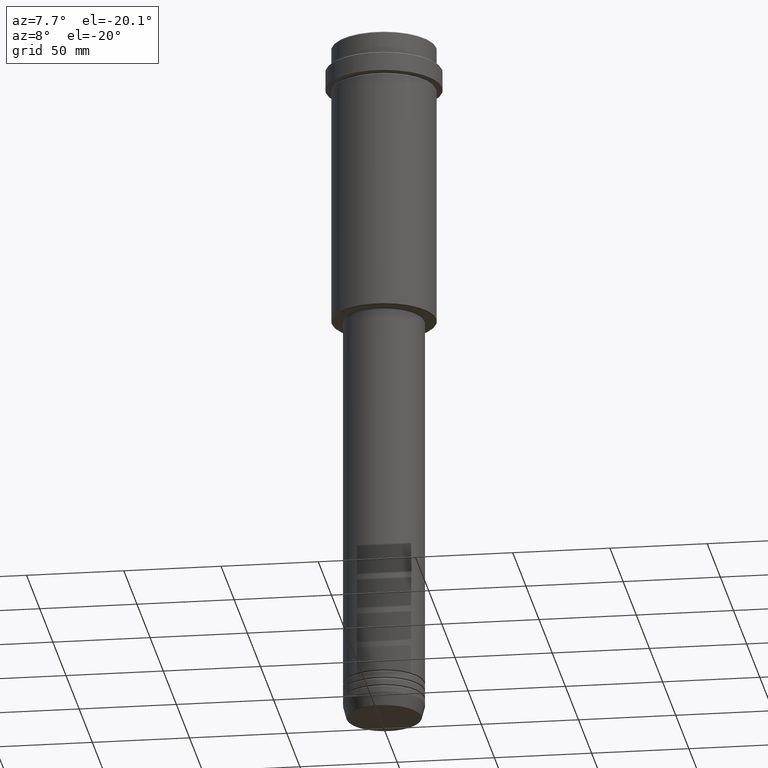
[diagram: clean part render]
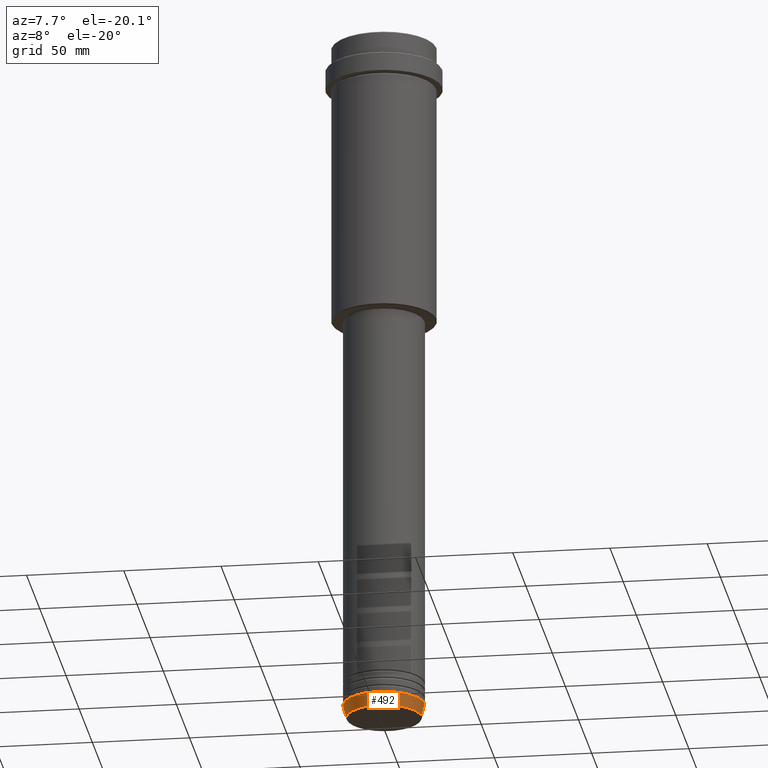
[diagram: same view with one face highlighted and labeled with its STEP entity id]
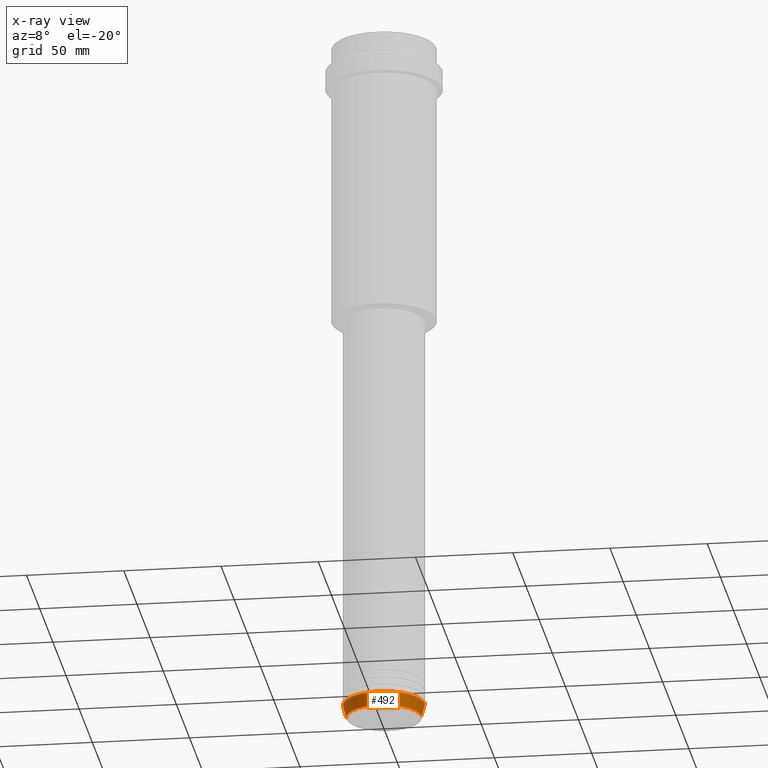
[diagram: x-ray of the same camera — body ghosted, the highlighted face saturated]
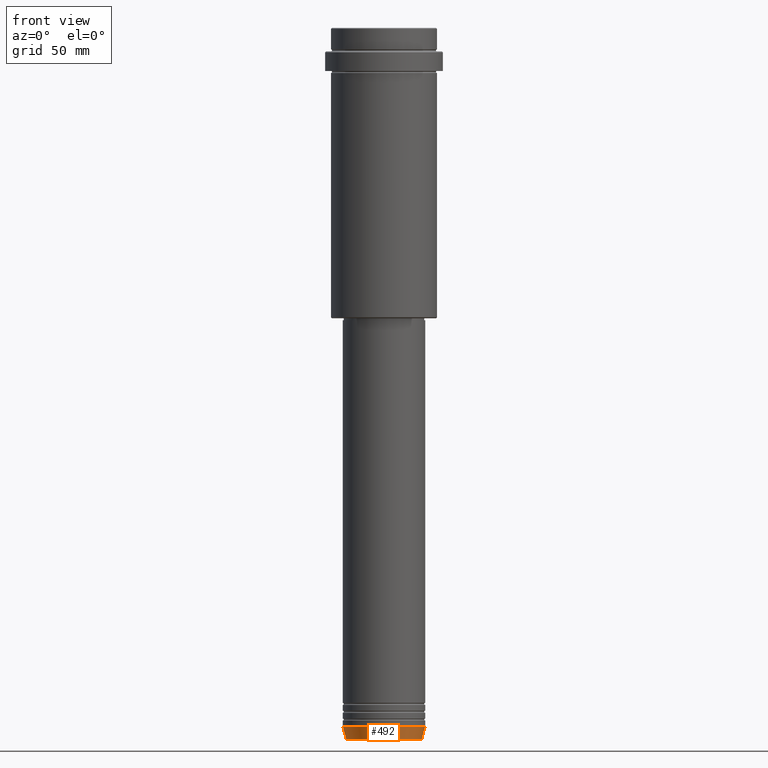
[diagram: same view with one face highlighted and labeled with its STEP entity id]
A machine part, auxiliary view. The second image highlights one B-rep face of the part: STEP entity #492.
The next image is the same camera in x-ray: the body ghosted, the highlighted face saturated — about 0% of this face is hidden behind the body in this view.
A second angle (front view) of the same face is appended — the face is thin or edge-on in the first view.
In plain terms, the highlighted conical surface has half-angle 15 deg.
Its self-contained STEP definition (entity closure, byte-faithful):
#124 = EDGE_CURVE ( 'NONE', #748, #1288, #1356, .T. ) ;
#153 = FACE_OUTER_BOUND ( 'NONE', #289, .T. ) ;
#164 = DIRECTION ( 'NONE',  ( 1.000000000000000000, 0.000000000000000000, 0.000000000000000000 ) ) ;
#202 = CARTESIAN_POINT ( 'NONE',  ( 21.00000000000000000, 0.000000000000000000, -356.0000000000000568 ) ) ;
#210 = VECTOR ( 'NONE', #787, 1000.000000000000000 ) ;
#287 = DIRECTION ( 'NONE',  ( 0.2588190451025209060, 0.000000000000000000, 0.9659258262890682012 ) ) ;
#289 = EDGE_LOOP ( 'NONE', ( #367, #1102, #768, #1172 ) ) ;
#346 = AXIS2_PLACEMENT_3D ( 'NONE', #1140, #389, #164 ) ;
#357 = EDGE_CURVE ( 'NONE', #561, #748, #779, .T. ) ;
#367 = ORIENTED_EDGE ( 'NONE', *, *, #357, .F. ) ;
#389 = DIRECTION ( 'NONE',  ( -0.000000000000000000, -0.000000000000000000, 1.000000000000000000 ) ) ;
#431 = EDGE_CURVE ( 'NONE', #1376, #1288, #1041, .T. ) ;
#479 = AXIS2_PLACEMENT_3D ( 'NONE', #1197, #665, #655 ) ;
#492 = ADVANCED_FACE ( 'NONE', ( #153 ), #961, .T. ) ;
#520 = AXIS2_PLACEMENT_3D ( 'NONE', #720, #1370, #1156 ) ;
#561 = VERTEX_POINT ( 'NONE', #1092 ) ;
#604 = CARTESIAN_POINT ( 'NONE',  ( 21.00000000000000000, 0.000000000000000000, -356.0000000000000568 ) ) ;
#655 = DIRECTION ( 'NONE',  ( 1.000000000000000000, 0.000000000000000000, 0.000000000000000000 ) ) ;
#665 = DIRECTION ( 'NONE',  ( -0.000000000000000000, -0.000000000000000000, 1.000000000000000000 ) ) ;
#720 = CARTESIAN_POINT ( 'NONE',  ( 0.000000000000000000, 0.000000000000000000, -356.0000000000000568 ) ) ;
#748 = VERTEX_POINT ( 'NONE', #1184 ) ;
#768 = ORIENTED_EDGE ( 'NONE', *, *, #431, .T. ) ;
#779 = LINE ( 'NONE', #1002, #210 ) ;
#787 = DIRECTION ( 'NONE',  ( -0.2588190451025209060, 3.169619151431766790E-17, 0.9659258262890682012 ) ) ;
#961 = CONICAL_SURFACE ( 'NONE', #346, 21.00000000000000000, 0.2617993877991495744 ) ;
#1002 = CARTESIAN_POINT ( 'NONE',  ( -21.00000000000000000, 2.571758278209441661E-15, -356.0000000000000568 ) ) ;
#1025 = VECTOR ( 'NONE', #287, 1000.000000000000000 ) ;
#1041 = LINE ( 'NONE', #604, #1025 ) ;
#1092 = CARTESIAN_POINT ( 'NONE',  ( -19.22365507213718416, 2.462988521705000261E-15, -362.6294095225512706 ) ) ;
#1102 = ORIENTED_EDGE ( 'NONE', *, *, #1394, .T. ) ;
#1140 = CARTESIAN_POINT ( 'NONE',  ( 0.000000000000000000, 0.000000000000000000, -356.0000000000000568 ) ) ;
#1156 = DIRECTION ( 'NONE',  ( 1.000000000000000000, 0.000000000000000000, 0.000000000000000000 ) ) ;
#1172 = ORIENTED_EDGE ( 'NONE', *, *, #124, .F. ) ;
#1184 = CARTESIAN_POINT ( 'NONE',  ( -21.00000000000000000, 2.571758278209441661E-15, -356.0000000000000568 ) ) ;
#1197 = CARTESIAN_POINT ( 'NONE',  ( 0.000000000000000000, 0.000000000000000000, -362.6294095225512706 ) ) ;
#1288 = VERTEX_POINT ( 'NONE', #202 ) ;
#1356 = CIRCLE ( 'NONE', #520, 21.00000000000000000 ) ;
#1364 = CIRCLE ( 'NONE', #479, 19.22365507213718416 ) ;
#1370 = DIRECTION ( 'NONE',  ( -0.000000000000000000, -0.000000000000000000, 1.000000000000000000 ) ) ;
#1376 = VERTEX_POINT ( 'NONE', #1411 ) ;
#1394 = EDGE_CURVE ( 'NONE', #561, #1376, #1364, .T. ) ;
#1411 = CARTESIAN_POINT ( 'NONE',  ( 19.22365507213718416, 0.000000000000000000, -362.6294095225512706 ) ) ;